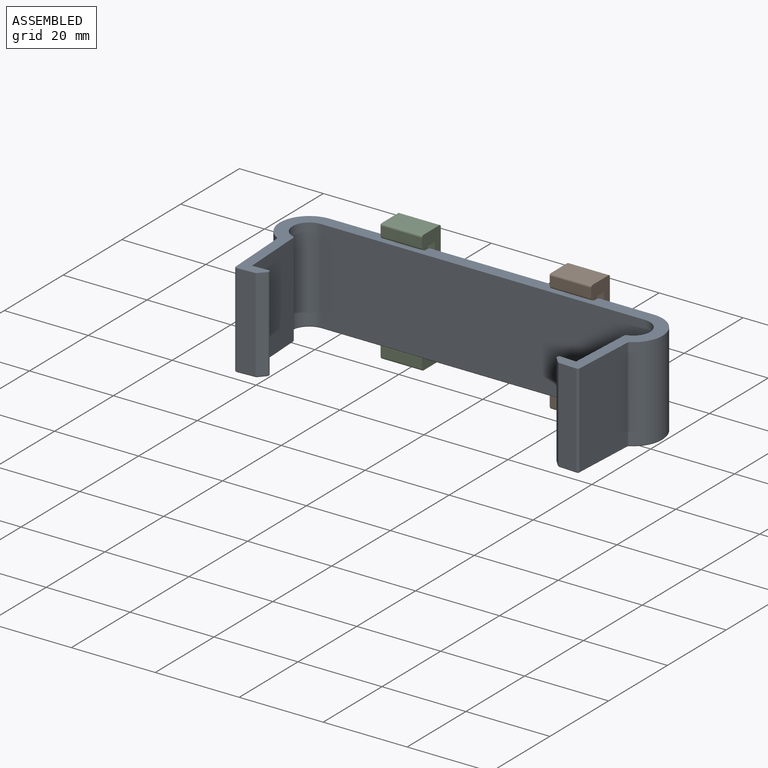
[diagram: assembled view]
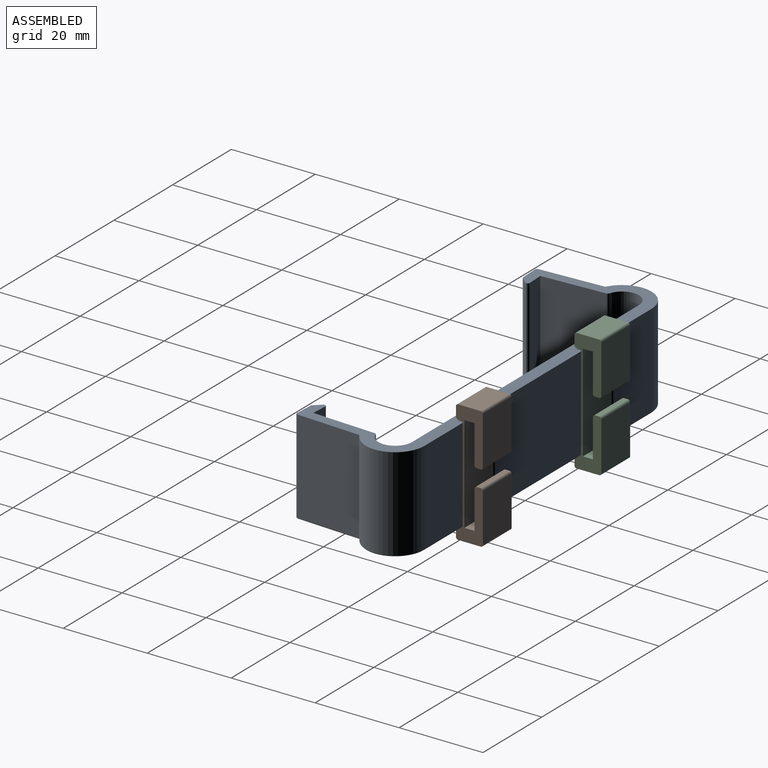
[diagram: assembled view, second angle]
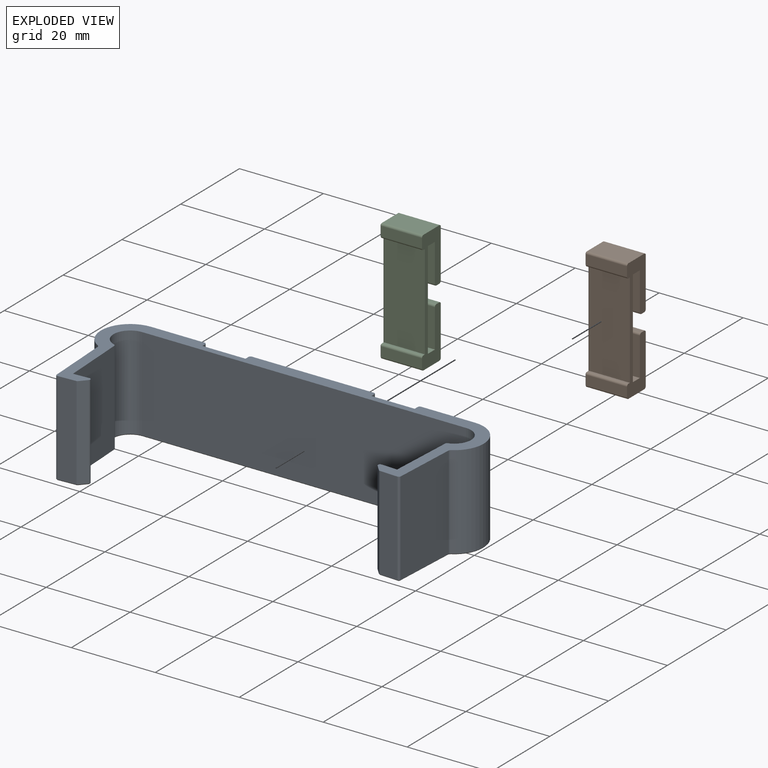
[diagram: exploded view]
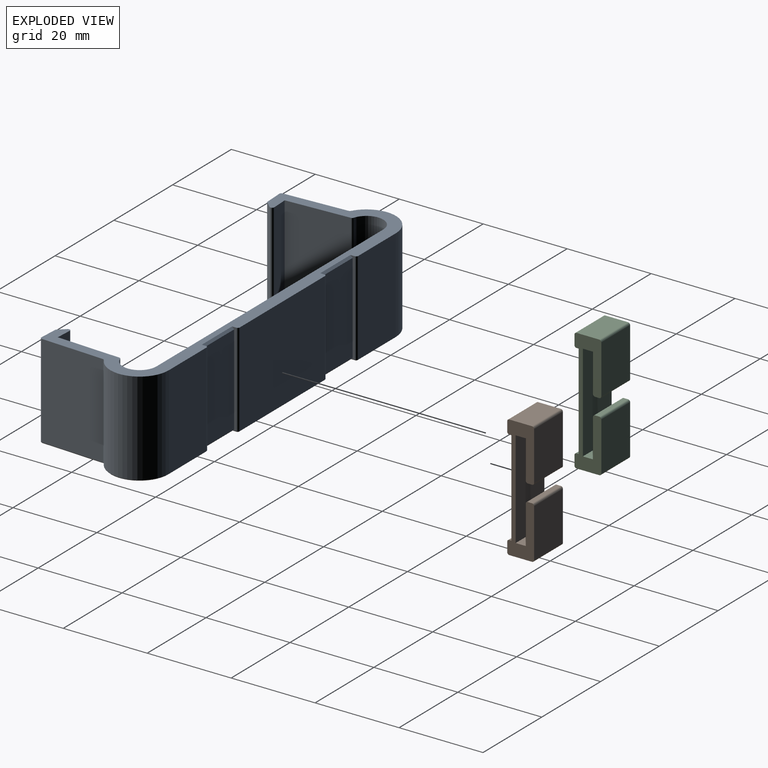
[diagram: exploded view, second angle]
ASSEMBLY  parts=3 mates=2
PART A: 80 faces, bbox 91.2x29.1x22.5 mm
  f0: plane 22.3x12.8mm, normal (0,1,0), area 285.4mm2, adj f3,f16,f28,f72
  f1: plane 29x22.3mm, normal (0,1,0), area 646.7mm2, adj f3,f27,f29,f77
  f2: plane 90.8x28.7mm, normal (0,0,-1), area 337.6mm2, adj f40,f43,f44,f45,f46,f47,f48,f49
  f3: plane 91.2x29.1mm, normal (0,0,1), area 394.7mm2, adj f0,f1,f4,f5,f6,f7,f8,f9
  f4: plane 22.3x3.79mm, normal (-0.05,1,0), area 84.6mm2, adj f3,f5,f39,f63
  f5: plane 22.3x15.22mm, normal (1,0.05,0), area 339.8mm2, adj f3,f4,f38,f62
  f6: cylinder r=4mm len=22.3mm, axis (0,0,1), area 254.2mm2, adj f3,f7,f38,f60
  f7: plane 77.2x22.3mm, normal (0,-1,0), area 1721.6mm2, adj f3,f6,f8,f59
  f8: cylinder r=4mm len=22.3mm, axis (0,0,1), area 254.2mm2, adj f3,f7,f37,f58
  f9: plane 22.3x15.22mm, normal (-1,0.05,0), area 339.8mm2, adj f3,f10,f37,f56
  f10: plane 22.3x3.79mm, normal (0.05,1,0), area 84.6mm2, adj f3,f9,f36,f55
  f11: plane 22.3x1.58mm, normal (-0.74,-0.67,0), area 47.3mm2, adj f3,f35,f36,f53
  f12: plane 22.3x4.29mm, normal (-0.05,-1,0), area 95.7mm2, adj f3,f34,f35,f51
  f13: plane 22.3x15.12mm, normal (1,-0.05,0), area 337.7mm2, adj f3,f33,f34,f49
  f14: cylinder r=7mm len=22.3mm, axis (0,0,1), area 410.3mm2, adj f3,f15,f33,f47
  f15: plane 22.3x12.8mm, normal (0,1,0), area 285.4mm2, adj f3,f14,f26,f46
  f16: cylinder r=7mm len=22.3mm, axis (0,0,1), area 410.3mm2, adj f0,f3,f32,f71
  f17: plane 22.3x15.12mm, normal (-1,-0.05,0), area 337.7mm2, adj f3,f31,f32,f69
  f18: plane 22.3x4.29mm, normal (0.05,-1,0), area 95.7mm2, adj f3,f30,f31,f67
  f19: plane 22.3x1.58mm, normal (0.74,-0.67,0), area 47.3mm2, adj f3,f30,f39,f65
  f20: plane 22.3x1mm, normal (-1,0,0), area 11.3mm2, adj f3,f22,f26,f42,f43,f44
  f21: plane 22.3x1mm, normal (1,0,0), area 11.3mm2, adj f3,f22,f27,f42,f43,f79
  f22: plane 21.5x10.3mm, normal (0,1,0), area 221.5mm2, adj f20,f21,f42,f43
  f23: plane 22.3x1mm, normal (1,0,0), area 11.3mm2, adj f3,f24,f28,f40,f41,f74
  f24: plane 21.5x10.3mm, normal (0,1,0), area 221.5mm2, adj f23,f25,f40,f41
  f25: plane 22.3x1mm, normal (-1,0,0), area 11.3mm2, adj f3,f24,f29,f40,f41,f75
  f26: cylinder r=0.5mm len=22.3mm, axis (0,0,1), area 17.5mm2, adj f3,f15,f20,f45
  f27: cylinder r=0.5mm len=22.3mm, axis (0,0,-1), area 17.5mm2, adj f1,f3,f21,f78
  f28: cylinder r=0.5mm len=22.3mm, axis (0,0,-1), area 17.5mm2, adj f0,f3,f23,f73
  f29: cylinder r=0.5mm len=22.3mm, axis (0,0,1), area 17.5mm2, adj f1,f3,f25,f76
  f30: cylinder r=0.5mm len=22.3mm, axis (0,0,1), area 8.8mm2, adj f3,f18,f19,f66
  f31: cylinder r=0.5mm len=22.3mm, axis (0,0,1), area 17.5mm2, adj f3,f17,f18,f68
  f32: cylinder r=0.5mm len=22.3mm, axis (0,0,1), area 11.2mm2, adj f3,f16,f17,f70
  f33: cylinder r=0.5mm len=22.3mm, axis (0,0,1), area 11.2mm2, adj f3,f13,f14,f48
  f34: cylinder r=0.5mm len=22.3mm, axis (0,0,1), area 17.5mm2, adj f3,f12,f13,f50
  f35: cylinder r=0.5mm len=22.3mm, axis (0,0,1), area 8.8mm2, adj f3,f11,f12,f52
  f36: cylinder r=0.5mm len=22.3mm, axis (0,0,1), area 26.3mm2, adj f3,f10,f11,f54
  f37: cylinder r=0.5mm len=22.3mm, axis (0,0,1), area 13.7mm2, adj f3,f8,f9,f57
  f38: cylinder r=0.5mm len=22.3mm, axis (0,0,1), area 13.7mm2, adj f3,f5,f6,f61
  f39: cylinder r=0.5mm len=22.3mm, axis (0,0,1), area 26.3mm2, adj f3,f4,f19,f64
  f40: plane 10.7x0.5mm, normal (0,0.71,-0.71), area 7.3mm2, adj f2,f23,f24,f25,f74,f75
  f41: plane 10.3x0.5mm, normal (0,0.71,0.71), area 7.3mm2, adj f3,f23,f24,f25
  f42: plane 10.3x0.5mm, normal (0,0.71,0.71), area 7.3mm2, adj f3,f20,f21,f22
  f43: plane 10.7x0.5mm, normal (0,0.71,-0.71), area 7.3mm2, adj f2,f20,f21,f22,f44,f79
  f44: plane 1x0.2mm, normal (-0.71,0,-0.71), area 0.3mm2, adj f2,f20,f43,f45
  f45: cone r=0.3mm half-angle=45deg, axis (0,0,1), area 0.2mm2, adj f2,f26,f44,f46
  f46: plane 12.8x0.2mm, normal (0,0.71,-0.71), area 3.6mm2, adj f2,f15,f45,f47
  f47: cone r=7mm half-angle=45deg, axis (0,0,1), area 5.1mm2, adj f2,f14,f46,f48
  f48: cone r=0.7mm half-angle=45deg, axis (0,0,-1), area 0.2mm2, adj f2,f33,f47,f49
  f49: plane 15.13x0.99mm, normal (0.71,-0.04,-0.71), area 4.3mm2, adj f2,f13,f48,f50
  f50: cone r=0.3mm half-angle=45deg, axis (0,0,1), area 0.2mm2, adj f2,f34,f49,f51
  f51: plane 4.3x0.42mm, normal (-0.04,-0.71,-0.71), area 1.2mm2, adj f2,f12,f50,f52
  f52: cone r=0.3mm half-angle=45deg, axis (0,0,1), area 0.1mm2, adj f2,f35,f51,f53
  f53: plane 1.71x1.57mm, normal (-0.53,-0.47,-0.71), area 0.6mm2, adj f2,f11,f52,f54
  f54: cone r=0.3mm half-angle=45deg, axis (0,0,1), area 0.3mm2, adj f2,f36,f53,f55
  f55: plane 3.99x0.41mm, normal (0.04,0.71,-0.71), area 1.1mm2, adj f2,f10,f54,f56
  f56: plane 15.43x1mm, normal (-0.71,0.04,-0.71), area 4.3mm2, adj f2,f9,f55,f57
  f57: cone r=0.3mm half-angle=45deg, axis (0,0,1), area 0.1mm2, adj f2,f37,f56,f58
  f58: cone r=4mm half-angle=45deg, axis (0,0,-1), area 3.3mm2, adj f2,f8,f57,f59
  f59: plane 77.2x0.2mm, normal (0,-0.71,-0.71), area 21.8mm2, adj f2,f7,f58,f60
  f60: cone r=4mm half-angle=45deg, axis (0,0,-1), area 3.3mm2, adj f2,f6,f59,f61
  f61: cone r=0.3mm half-angle=45deg, axis (0,0,1), area 0.1mm2, adj f2,f38,f60,f62
  f62: plane 15.43x1mm, normal (0.71,0.04,-0.71), area 4.3mm2, adj f2,f5,f61,f63
  f63: plane 3.99x0.41mm, normal (-0.04,0.71,-0.71), area 1.1mm2, adj f2,f4,f62,f64
  f64: cone r=0.3mm half-angle=45deg, axis (0,0,1), area 0.3mm2, adj f2,f39,f63,f65
  f65: plane 1.71x1.57mm, normal (0.53,-0.47,-0.71), area 0.6mm2, adj f2,f19,f64,f66
  f66: cone r=0.3mm half-angle=45deg, axis (0,0,1), area 0.1mm2, adj f2,f30,f65,f67
  f67: plane 4.3x0.42mm, normal (0.04,-0.71,-0.71), area 1.2mm2, adj f2,f18,f66,f68
  f68: cone r=0.3mm half-angle=45deg, axis (0,0,1), area 0.2mm2, adj f2,f31,f67,f69
  f69: plane 15.13x0.99mm, normal (-0.71,-0.04,-0.71), area 4.3mm2, adj f2,f17,f68,f70
  f70: cone r=0.7mm half-angle=45deg, axis (0,0,-1), area 0.2mm2, adj f2,f32,f69,f71
  f71: cone r=7mm half-angle=45deg, axis (0,0,1), area 5.1mm2, adj f2,f16,f70,f72
  f72: plane 12.8x0.2mm, normal (0,0.71,-0.71), area 3.6mm2, adj f0,f2,f71,f73
  f73: cone r=0.3mm half-angle=45deg, axis (0,0,1), area 0.2mm2, adj f2,f28,f72,f74
  f74: plane 1x0.2mm, normal (0.71,0,-0.71), area 0.3mm2, adj f2,f23,f40,f73
  f75: plane 1x0.2mm, normal (-0.71,0,-0.71), area 0.3mm2, adj f2,f25,f40,f76
  f76: cone r=0.3mm half-angle=45deg, axis (0,0,1), area 0.2mm2, adj f2,f29,f75,f77
  f77: plane 29x0.2mm, normal (0,0.71,-0.71), area 8.2mm2, adj f1,f2,f76,f78
  f78: cone r=0.3mm half-angle=45deg, axis (0,0,1), area 0.2mm2, adj f2,f27,f77,f79
  f79: plane 1x0.2mm, normal (0.71,0,-0.71), area 0.3mm2, adj f2,f21,f43,f78
PART B: 54 faces, bbox 29.2x6.4x10 mm
  f0: plane 9.8x2.25mm, normal (0,-1,0), area 22.1mm2, adj f14,f18,f23,f29
  f1: plane 28.8x6mm, normal (0,0,-1), area 76.4mm2, adj f28,f29,f30,f31,f32,f33,f34,f35
  f2: plane 23.2x9.8mm, normal (0,1,0), area 227.4mm2, adj f3,f13,f14,f49
  f3: plane 9.8x2.4mm, normal (1,0,0), area 23.5mm2, adj f2,f4,f14,f47
  f4: plane 9.8x9.1mm, normal (0,-1,0), area 89.2mm2, adj f3,f14,f20,f45
  f5: plane 9.8x1mm, normal (1,0,0), area 9.8mm2, adj f14,f20,f21,f41
  f6: plane 11.6x9.8mm, normal (0,1,0), area 113.7mm2, adj f14,f21,f22,f37
  f7: plane 9.8x5.4mm, normal (-1,0,0), area 52.9mm2, adj f14,f22,f23,f33
  f8: plane 9.8x2.25mm, normal (0,-1,0), area 22.1mm2, adj f14,f19,f24,f38
  f9: plane 9.8x5.4mm, normal (1,0,0), area 52.9mm2, adj f14,f24,f25,f42
  f10: plane 11.6x9.8mm, normal (0,1,0), area 113.7mm2, adj f14,f25,f26,f46
  f11: plane 9.8x1mm, normal (-1,0,0), area 9.8mm2, adj f14,f26,f27,f50
  f12: plane 9.8x9.1mm, normal (0,-1,0), area 89.2mm2, adj f13,f14,f27,f53
  f13: plane 9.8x2.4mm, normal (-1,0,0), area 23.5mm2, adj f2,f12,f14,f51
  f14: plane 29.2x6.4mm, normal (0,0,1), area 100mm2, adj f0,f2,f3,f4,f5,f6,f7,f8
  f15: plane 9.8x0.5mm, normal (1,0,0), area 4.9mm2, adj f14,f17,f18,f30
  f16: plane 9.8x0.5mm, normal (-1,0,0), area 4.9mm2, adj f14,f17,f19,f34
  f17: plane 22.7x9.8mm, normal (0,-1,0), area 222.5mm2, adj f14,f15,f16,f32
  f18: cylinder r=0.5mm len=9.8mm, axis (0,0,-1), area 7.7mm2, adj f0,f14,f15,f28
  f19: cylinder r=0.5mm len=9.8mm, axis (0,0,1), area 7.7mm2, adj f8,f14,f16,f36
  f20: cylinder r=0.5mm len=9.8mm, axis (0,0,1), area 7.7mm2, adj f4,f5,f14,f43
  f21: cylinder r=0.5mm len=9.8mm, axis (0,0,-1), area 7.7mm2, adj f5,f6,f14,f39
  f22: cylinder r=0.5mm len=9.8mm, axis (0,0,1), area 7.7mm2, adj f6,f7,f14,f35
  f23: cylinder r=0.5mm len=9.8mm, axis (0,0,-1), area 7.7mm2, adj f0,f7,f14,f31
  f24: cylinder r=0.5mm len=9.8mm, axis (0,0,1), area 7.7mm2, adj f8,f9,f14,f40
  f25: cylinder r=0.5mm len=9.8mm, axis (0,0,1), area 7.7mm2, adj f9,f10,f14,f44
  f26: cylinder r=0.5mm len=9.8mm, axis (0,0,-1), area 7.7mm2, adj f10,f11,f14,f48
  f27: cylinder r=0.5mm len=9.8mm, axis (0,0,1), area 7.7mm2, adj f11,f12,f14,f52
  f28: cone r=0.3mm half-angle=45deg, axis (0,0,1), area 0.2mm2, adj f1,f18,f29,f30
  f29: plane 2.25x0.2mm, normal (0,-0.71,-0.71), area 0.6mm2, adj f0,f1,f28,f31
  f30: plane 0.7x0.2mm, normal (0.71,0,-0.71), area 0.2mm2, adj f1,f15,f28,f32
  f31: cone r=0.3mm half-angle=45deg, axis (0,0,1), area 0.2mm2, adj f1,f23,f29,f33
  f32: plane 23.1x0.2mm, normal (0,-0.71,-0.71), area 6.5mm2, adj f1,f17,f30,f34
  f33: plane 5.4x0.2mm, normal (-0.71,0,-0.71), area 1.5mm2, adj f1,f7,f31,f35
  f34: plane 0.7x0.2mm, normal (-0.71,0,-0.71), area 0.2mm2, adj f1,f16,f32,f36
  f35: cone r=0.3mm half-angle=45deg, axis (0,0,1), area 0.2mm2, adj f1,f22,f33,f37
  f36: cone r=0.3mm half-angle=45deg, axis (0,0,1), area 0.2mm2, adj f1,f19,f34,f38
  f37: plane 11.6x0.2mm, normal (0,0.71,-0.71), area 3.3mm2, adj f1,f6,f35,f39
  f38: plane 2.25x0.2mm, normal (0,-0.71,-0.71), area 0.6mm2, adj f1,f8,f36,f40
  f39: cone r=0.3mm half-angle=45deg, axis (0,0,1), area 0.2mm2, adj f1,f21,f37,f41
  f40: cone r=0.3mm half-angle=45deg, axis (0,0,1), area 0.2mm2, adj f1,f24,f38,f42
  f41: plane 1x0.2mm, normal (0.71,0,-0.71), area 0.3mm2, adj f1,f5,f39,f43
  f42: plane 5.4x0.2mm, normal (0.71,0,-0.71), area 1.5mm2, adj f1,f9,f40,f44
  f43: cone r=0.3mm half-angle=45deg, axis (0,0,1), area 0.2mm2, adj f1,f20,f41,f45
  f44: cone r=0.3mm half-angle=45deg, axis (0,0,1), area 0.2mm2, adj f1,f25,f42,f46
  f45: plane 9.3x0.2mm, normal (0,-0.71,-0.71), area 2.6mm2, adj f1,f4,f43,f47
  f46: plane 11.6x0.2mm, normal (0,0.71,-0.71), area 3.3mm2, adj f1,f10,f44,f48
  f47: plane 2.8x0.2mm, normal (0.71,0,-0.71), area 0.7mm2, adj f1,f3,f45,f49
  f48: cone r=0.3mm half-angle=45deg, axis (0,0,1), area 0.2mm2, adj f1,f26,f46,f50
  f49: plane 23.6x0.2mm, normal (0,0.71,-0.71), area 6.6mm2, adj f1,f2,f47,f51
  f50: plane 1x0.2mm, normal (-0.71,0,-0.71), area 0.3mm2, adj f1,f11,f48,f52
  f51: plane 2.8x0.2mm, normal (-0.71,0,-0.71), area 0.7mm2, adj f1,f13,f49,f53
  f52: cone r=0.3mm half-angle=45deg, axis (0,0,1), area 0.2mm2, adj f1,f27,f50,f53
  f53: plane 9.3x0.2mm, normal (0,-0.71,-0.71), area 2.6mm2, adj f1,f12,f51,f52
PART C: same geometry as B
PLACE A at identity fixed
PLACE B rot(axis=(0,1,0),90deg) t=(15.05,3.2,11.25)mm
PLACE C rot(axis=(0,1,0),90deg) t=(-25.25,3.2,11.25)mm
MATE fastened A.f24 <-> C.f17  axis (0,1,0) through (-20.15,2.1,11.25)mm
MATE fastened A.f22 <-> B.f17  axis (0,1,0) through (20.15,2.1,11.25)mm
